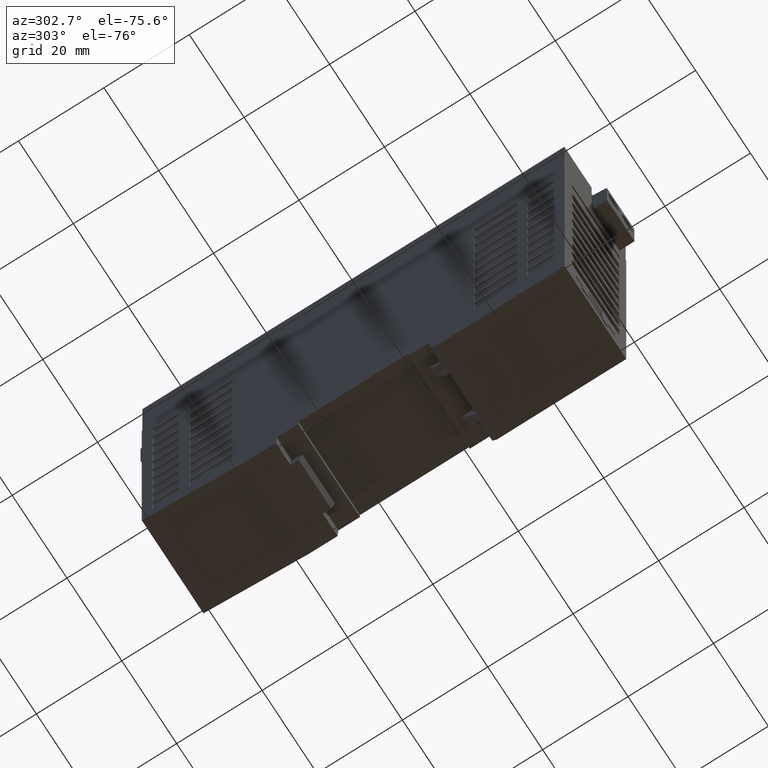
[diagram: clean part render]
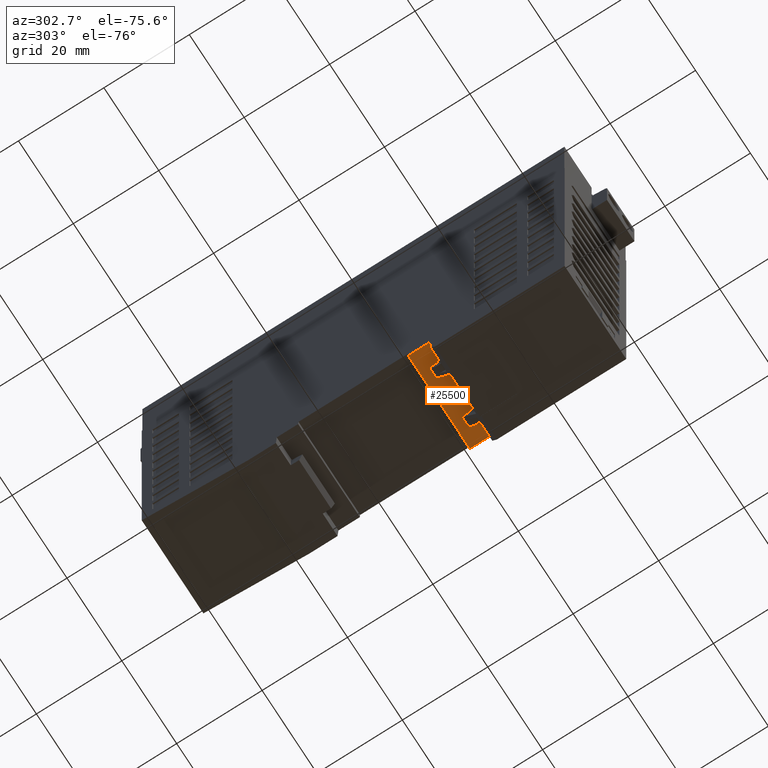
[diagram: same view with one face highlighted and labeled with its STEP entity id]
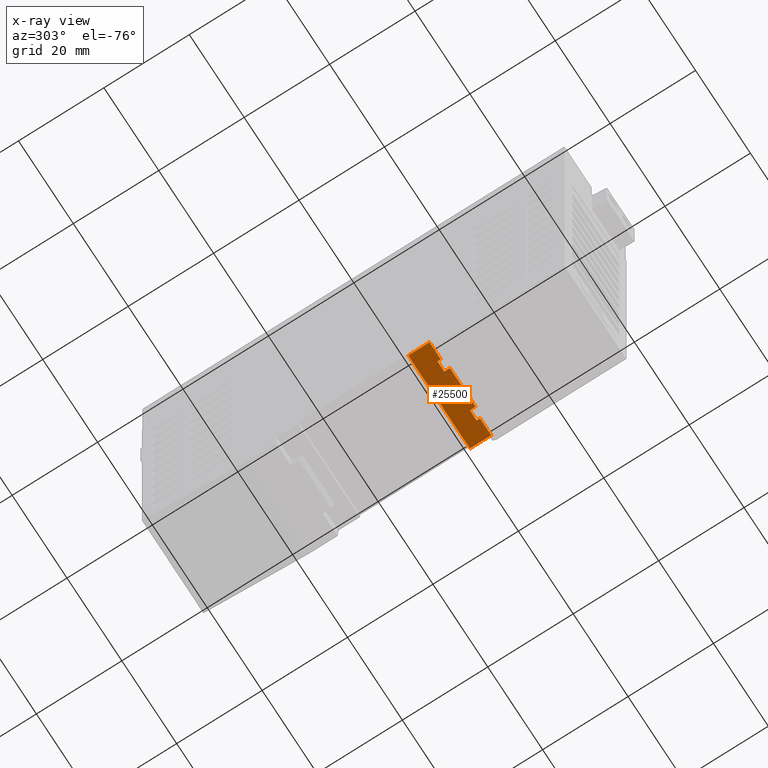
[diagram: x-ray of the same camera — body ghosted, the highlighted face saturated]
A machine part, auxiliary view. The second image highlights one B-rep face of the part: STEP entity #25500.
The next image is the same camera in x-ray: the body ghosted, the highlighted face saturated — about 0% of this face is hidden behind the body in this view.
In plain terms, the highlighted planar face has unit normal (0, 0, 1).
Its self-contained STEP definition (entity closure, byte-faithful):
#7480=CARTESIAN_POINT('',(-11.25,0.,-12.8838524468493));
#7490=VERTEX_POINT('',#7480);
#7520=CARTESIAN_POINT('',(-11.25,0.,-13.0736453602));
#7530=DIRECTION('',(0.,0.,-1.));
#7540=VECTOR('',#7530,1.);
#7550=LINE('',#7520,#7540);
#7560=CARTESIAN_POINT('',(-11.25,0.,-17.8838524468513));
#7570=VERTEX_POINT('',#7560);
#7580=EDGE_CURVE('',#7490,#7570,#7550,.T.);
#22030=CARTESIAN_POINT('',(11.25,0.,-17.8838524468513));
#22040=VERTEX_POINT('',#22030);
#22070=CARTESIAN_POINT('',(11.25,0.,0.));
#22080=DIRECTION('',(0.,0.,-1.));
#22090=VECTOR('',#22080,1.);
#22100=LINE('',#22070,#22090);
#22110=CARTESIAN_POINT('',(11.25,0.,-12.8838524468493));
#22120=VERTEX_POINT('',#22110);
#22130=EDGE_CURVE('',#22120,#22040,#22100,.T.);
#24730=CARTESIAN_POINT('',(-11.25,0.,-12.8838524468493));
#24740=DIRECTION('',(0.,1.,0.));
#24750=DIRECTION('',(0.,0.,1.));
#24760=AXIS2_PLACEMENT_3D('',#24730,#24740,#24750);
#24770=PLANE('',#24760);
#24780=CARTESIAN_POINT('',(7.15,0.,0.));
#24790=DIRECTION('',(-9.46240965802253E-22,-0.,-1.));
#24800=VECTOR('',#24790,1.);
#24810=LINE('',#24780,#24800);
#24820=CARTESIAN_POINT('',(7.15,-1.4210854715202E-14,-17.1161475531443))
;
#24830=VERTEX_POINT('',#24820);
#24840=CARTESIAN_POINT('',(7.15,0.,-17.8838524468513));
#24850=VERTEX_POINT('',#24840);
#24860=EDGE_CURVE('',#24830,#24850,#24810,.T.);
#24870=ORIENTED_EDGE('',*,*,#24860,.T.);
#24880=CARTESIAN_POINT('',(13.5204,0.,-17.1161475531443));
#24890=DIRECTION('',(-1.,-0.,-1.38777878078145E-16));
#24900=VECTOR('',#24890,1.);
#24910=LINE('',#24880,#24900);
#24920=CARTESIAN_POINT('',(4.66933194604217,0.,-17.1161475531443));
#24930=VERTEX_POINT('',#24920);
#24940=EDGE_CURVE('',#24830,#24930,#24910,.T.);
#24950=ORIENTED_EDGE('',*,*,#24940,.F.);
#24960=CARTESIAN_POINT('',(4.6641178045899,0.,0.));
#24970=DIRECTION('',(0.000304632873381242,0.,-0.999999953599405));
#24980=VECTOR('',#24970,1.);
#24990=LINE('',#24960,#24980);
#25000=CARTESIAN_POINT('',(4.66972960003166,0.,-18.4215023122002));
#25010=VERTEX_POINT('',#25000);
#25020=EDGE_CURVE('',#24930,#25010,#24990,.T.);
#25030=ORIENTED_EDGE('',*,*,#25020,.F.);
#25040=CARTESIAN_POINT('',(0.,0.,-18.4215023122002));
#25050=DIRECTION('',(-1.,-0.,-1.38777878078145E-16));
#25060=VECTOR('',#25050,1.);
#25070=LINE('',#25040,#25060);
#25080=CARTESIAN_POINT('',(-4.66972960003165,0.,-18.4215023122002));
#25090=VERTEX_POINT('',#25080);
#25100=EDGE_CURVE('',#25010,#25090,#25070,.T.);
#25110=ORIENTED_EDGE('',*,*,#25100,.F.);
#25120=CARTESIAN_POINT('',(-4.6641178045899,0.,0.));
#25130=DIRECTION('',(0.000304632873381242,0.,0.999999953599405));
#25140=VECTOR('',#25130,1.);
#25150=LINE('',#25120,#25140);
#25160=CARTESIAN_POINT('',(-4.66933194604217,0.,-17.1161475531443));
#25170=VERTEX_POINT('',#25160);
#25180=EDGE_CURVE('',#25090,#25170,#25150,.T.);
#25190=ORIENTED_EDGE('',*,*,#25180,.F.);
#25200=CARTESIAN_POINT('',(-7.15,0.,-17.1161475531443));
#25210=VERTEX_POINT('',#25200);
#25220=EDGE_CURVE('',#25170,#25210,#24910,.T.);
#25230=ORIENTED_EDGE('',*,*,#25220,.F.);
#25240=CARTESIAN_POINT('',(-7.15,0.,0.));
#25250=DIRECTION('',(-9.46240965802253E-22,0.,1.));
#25260=VECTOR('',#25250,1.);
#25270=LINE('',#25240,#25260);
#25280=CARTESIAN_POINT('',(-7.15,0.,-17.8838524468513));
#25290=VERTEX_POINT('',#25280);
#25300=EDGE_CURVE('',#25290,#25210,#25270,.T.);
#25310=ORIENTED_EDGE('',*,*,#25300,.T.);
#25320=CARTESIAN_POINT('',(0.,0.,-17.8838524468513));
#25330=DIRECTION('',(1.,0.,0.));
#25340=VECTOR('',#25330,1.);
#25350=LINE('',#25320,#25340);
#25360=EDGE_CURVE('',#7570,#25290,#25350,.T.);
#25370=ORIENTED_EDGE('',*,*,#25360,.T.);
#25380=ORIENTED_EDGE('',*,*,#7580,.T.);
#25390=CARTESIAN_POINT('',(0.,0.,-12.8838524468493));
#25400=DIRECTION('',(1.,0.,0.));
#25410=VECTOR('',#25400,1.);
#25420=LINE('',#25390,#25410);
#25430=EDGE_CURVE('',#7490,#22120,#25420,.T.);
#25440=ORIENTED_EDGE('',*,*,#25430,.F.);
#25450=ORIENTED_EDGE('',*,*,#22130,.F.);
#25460=EDGE_CURVE('',#24850,#22040,#25350,.T.);
#25470=ORIENTED_EDGE('',*,*,#25460,.T.);
#25480=EDGE_LOOP('',(#25470,#25450,#25440,#25380,#25370,#25310,#25230,
#25190,#25110,#25030,#24950,#24870));
#25490=FACE_OUTER_BOUND('',#25480,.T.);
#25500=ADVANCED_FACE('',(#25490),#24770,.F.);